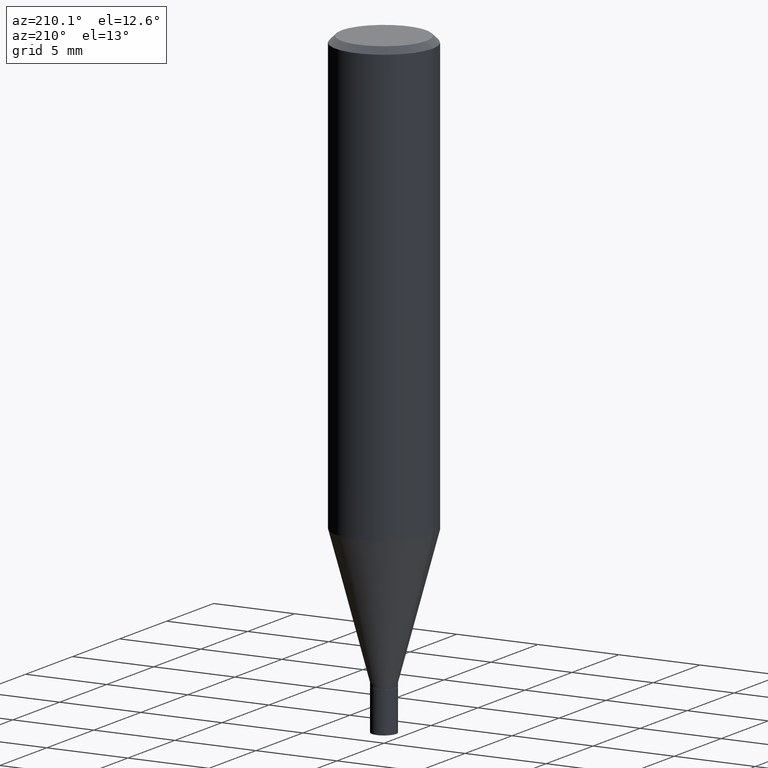
[diagram: clean part render]
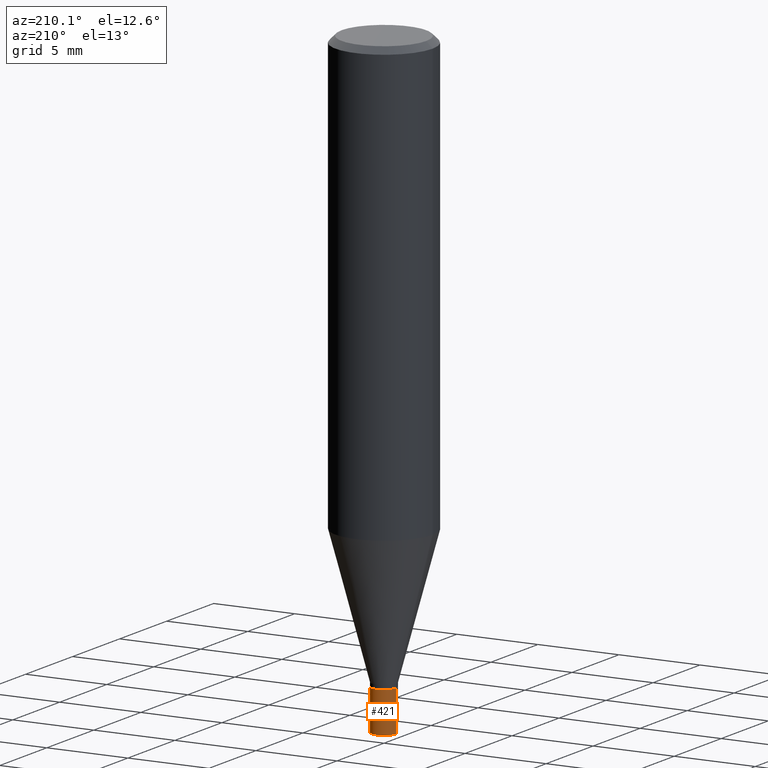
[diagram: same view with one face highlighted and labeled with its STEP entity id]
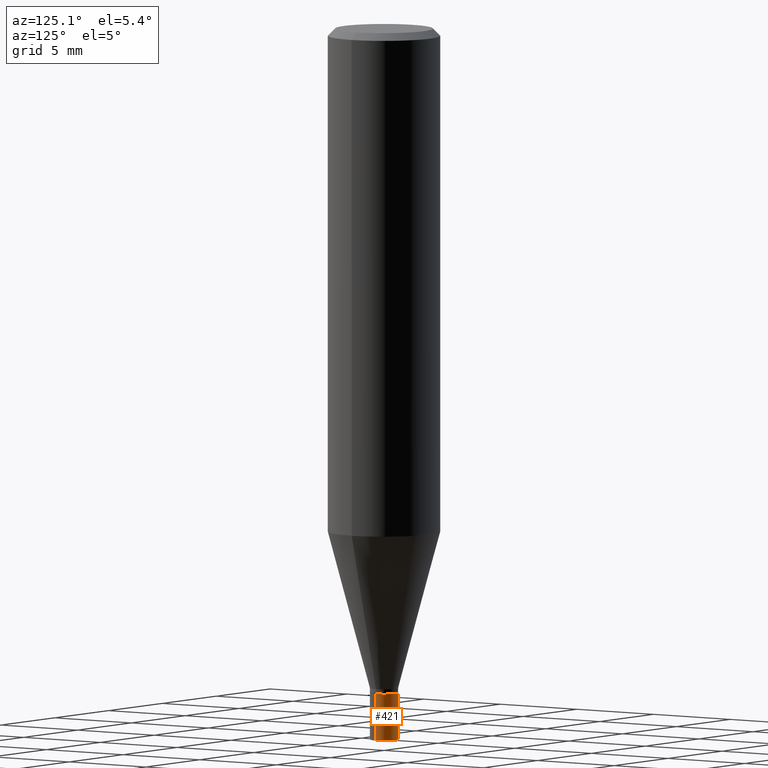
[diagram: same view with one face highlighted and labeled with its STEP entity id]
A machine part, auxiliary view. The second image highlights one B-rep face of the part: STEP entity #421.
A second angle (auxiliary view) of the same face is appended — the face is thin or edge-on in the first view.
In plain terms, the highlighted cylindrical surface (edge-blend (fillet) strip) has radius 0.7506 mm, axis along (-0, 0, 1).
Its self-contained STEP definition (entity closure, byte-faithful):
#19 = DIRECTION ( 'NONE',  ( -2.445468806185136597E-29, 3.491481338843145583E-15, 1.000000000000000000 ) ) ;
#28 = ORIENTED_EDGE ( 'NONE', *, *, #64, .T. ) ;
#48 = EDGE_LOOP ( 'NONE', ( #273, #28, #181, #424 ) ) ;
#64 = EDGE_CURVE ( 'NONE', #269, #361, #264, .T. ) ;
#74 = DIRECTION ( 'NONE',  ( -2.445468806185136877E-29, 3.491481338843145188E-15, 1.000000000000000000 ) ) ;
#77 = AXIS2_PLACEMENT_3D ( 'NONE', #300, #414, #113 ) ;
#88 = EDGE_CURVE ( 'NONE', #200, #361, #223, .T. ) ;
#96 = CARTESIAN_POINT ( 'NONE',  ( 0.000000000000000000, 0.000000000000000000, 0.000000000000000000 ) ) ;
#111 = VERTEX_POINT ( 'NONE', #153 ) ;
#113 = DIRECTION ( 'NONE',  ( 1.000000000000000000, -6.982962677686261977E-15, 0.000000000000000000 ) ) ;
#121 = CARTESIAN_POINT ( 'NONE',  ( -0.02954999999999999988, -4.855475747976527346E-15, -1.500000000000000222 ) ) ;
#137 = CYLINDRICAL_SURFACE ( 'NONE', #352, 0.02954999999999999988 ) ;
#146 = CARTESIAN_POINT ( 'NONE',  ( -0.02954999999999999988, -4.855475747976527346E-15, -1.401600000000000179 ) ) ;
#153 = CARTESIAN_POINT ( 'NONE',  ( 0.02954999999999999988, -5.443568555390347787E-15, -1.500000000000000222 ) ) ;
#157 = AXIS2_PLACEMENT_3D ( 'NONE', #418, #19, #389 ) ;
#170 = DIRECTION ( 'NONE',  ( -2.445468806185136597E-29, 3.491481338843145583E-15, 1.000000000000000000 ) ) ;
#181 = ORIENTED_EDGE ( 'NONE', *, *, #88, .F. ) ;
#183 = CIRCLE ( 'NONE', #157, 0.02954999999999999988 ) ;
#184 = CARTESIAN_POINT ( 'NONE',  ( -0.02954999999999999988, 2.099653784171096041E-16, -1.453545319170324550E-30 ) ) ;
#200 = VERTEX_POINT ( 'NONE', #298 ) ;
#223 = CIRCLE ( 'NONE', #77, 0.02954999999999999988 ) ;
#235 = EDGE_CURVE ( 'NONE', #111, #269, #183, .T. ) ;
#253 = VECTOR ( 'NONE', #74, 39.37007874015748143 ) ;
#257 = CARTESIAN_POINT ( 'NONE',  ( 0.02954999999999999988, -2.063465471256291914E-16, 1.440910237247699070E-30 ) ) ;
#264 = LINE ( 'NONE', #184, #268 ) ;
#268 = VECTOR ( 'NONE', #338, 39.37007874015748143 ) ;
#269 = VERTEX_POINT ( 'NONE', #121 ) ;
#273 = ORIENTED_EDGE ( 'NONE', *, *, #235, .T. ) ;
#298 = CARTESIAN_POINT ( 'NONE',  ( 0.02954999999999999988, -5.100006791648182474E-15, -1.401600000000000179 ) ) ;
#300 = CARTESIAN_POINT ( 'NONE',  ( 3.427569078749087752E-29, -4.893660244522553653E-15, -1.401600000000000179 ) ) ;
#338 = DIRECTION ( 'NONE',  ( -2.445468806185136877E-29, 3.491481338843145188E-15, 1.000000000000000000 ) ) ;
#348 = EDGE_CURVE ( 'NONE', #111, #200, #372, .T. ) ;
#352 = AXIS2_PLACEMENT_3D ( 'NONE', #96, #170, #356 ) ;
#356 = DIRECTION ( 'NONE',  ( 1.000000000000000000, -6.982962677686266711E-15, 4.876176775795935793E-29 ) ) ;
#361 = VERTEX_POINT ( 'NONE', #146 ) ;
#372 = LINE ( 'NONE', #257, #253 ) ;
#389 = DIRECTION ( 'NONE',  ( 1.000000000000000000, -6.982962677686261977E-15, 0.000000000000000000 ) ) ;
#414 = DIRECTION ( 'NONE',  ( -2.445468806185136597E-29, 3.491481338843145583E-15, 1.000000000000000000 ) ) ;
#418 = CARTESIAN_POINT ( 'NONE',  ( 3.668203209277704895E-29, -5.237222008264718177E-15, -1.500000000000000222 ) ) ;
#421 = ADVANCED_FACE ( 'NONE', ( #456 ), #137, .T. ) ;
#424 = ORIENTED_EDGE ( 'NONE', *, *, #348, .F. ) ;
#456 = FACE_OUTER_BOUND ( 'NONE', #48, .T. ) ;